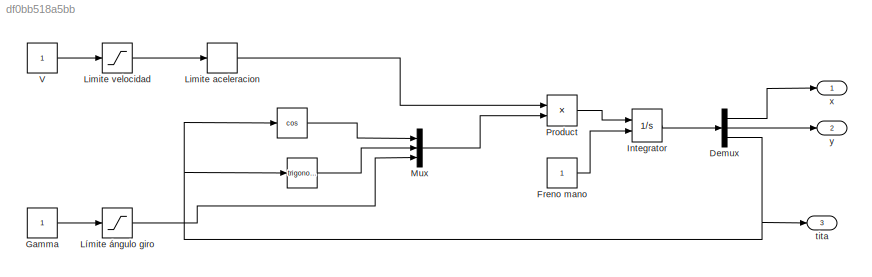
MODEL slx_df0bb518a5bb
KIND model
CONFIG AbsTol = auto
CONFIG EnableMultiTasking = off
CONFIG FixedStep = auto
CONFIG MaxStep = auto
CONFIG MinStep = auto
CONFIG RelTol = 1e-3
CONFIG SampleTimeConstraint = Unconstrained
CONFIG Solver = VariableStepAuto
CONFIG SolverName = VariableStepAuto
CONFIG StartTime = 0.0
CONFIG StopTime = 10.0
BLOCK [Trigonometry]  
  Ports = [1, 1]
BLOCK [Demux] Demux
  DisplayOption = bar
  Outputs = 3
  Ports = [1, 3]
BLOCK [Constant] Freno mano
BLOCK [Constant] Gamma 
BLOCK [Integrator] Integrator
  InitialCondition = x0
  InitialConditionSource = external
  Ports = [2, 1]
BLOCK [RateLimiter] Limite aceleracion
  SampleTimeMode = inherited
BLOCK [Saturate] Limite velocidad
  InputPortMap = u0
  LowerLimit = -1
  Ports = [1, 1]
  UpperLimit = 1
BLOCK [Saturate] Límite ángulo giro 
  InputPortMap = u0
  LowerLimit = -2
  Ports = [1, 1]
  UpperLimit = 2
BLOCK [Mux] Mux
  DisplayOption = bar
  Inputs = 3
  Ports = [3, 1]
BLOCK [Product] Product
  InputSameDT = off
  OutDataTypeStr = Inherit: Inherit via internal rule
  Ports = [2, 1]
  RndMeth = Floor
  SaturateOnIntegerOverflow = off
BLOCK [Constant] V 
BLOCK [Outport] tita
  IconDisplay = Port number
  Port = 3
BLOCK [Outport] x
  IconDisplay = Port number
BLOCK [Outport] y
  IconDisplay = Port number
  Port = 2
NET  :1 -> Mux:1, Mux:2
LINE Demux:1 -> x:1
LINE Demux:2 -> y:1
NET Demux:3 ->  :1, tita:1
LINE Freno mano:1 -> Integrator:2
LINE Gamma :1 -> Límite ángulo giro :1
LINE Integrator:1 -> Demux:1
LINE Limite aceleracion:1 -> Product:1
LINE Limite velocidad:1 -> Limite aceleracion:1
LINE Límite ángulo giro :1 -> Mux:3
LINE Mux:1 -> Product:2
LINE Product:1 -> Integrator:1
LINE V :1 -> Limite velocidad:1
note: NET lines group one-source signal fan-out (src -> all destinations, sorted); 1:1 wires keep LINE
